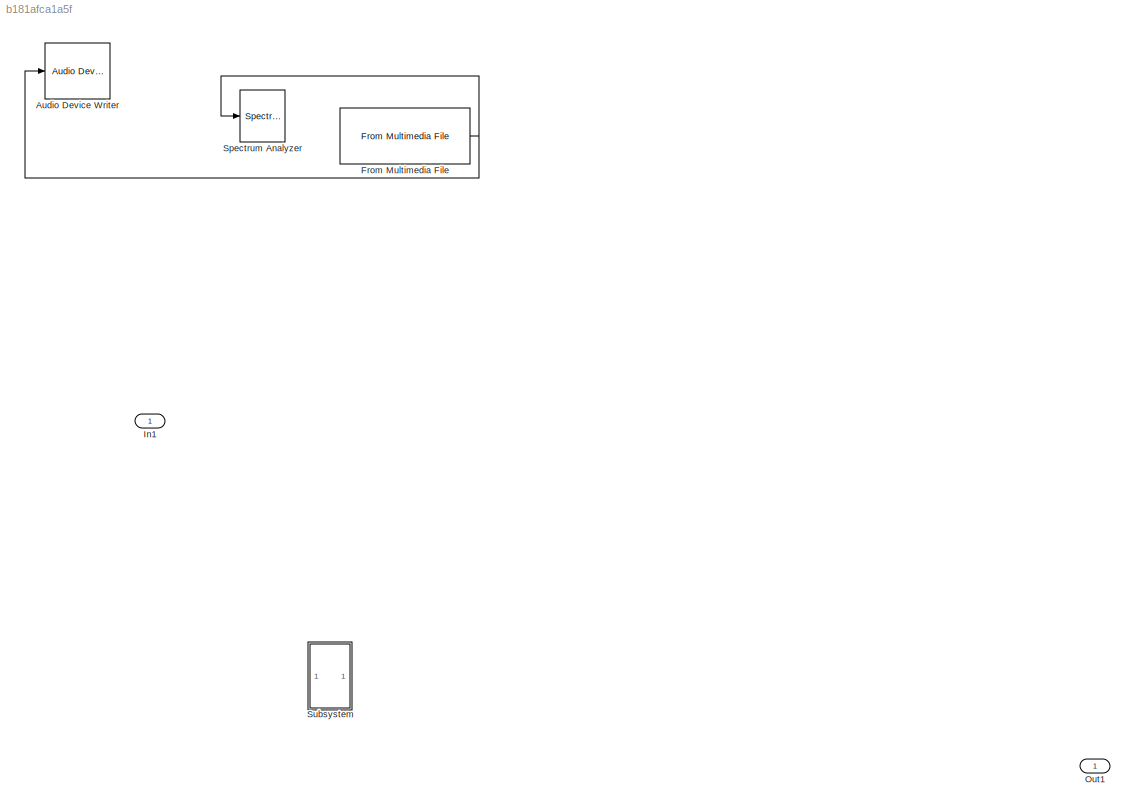
MODEL slx_b181afca1a5f
KIND model
CONFIG AbsTol = auto
CONFIG EnableMultiTasking = off
CONFIG FixedStep = auto
CONFIG MaxStep = auto
CONFIG MinStep = auto
CONFIG RelTol = 1e-3
CONFIG SampleTimeConstraint = Unconstrained
CONFIG Solver = VariableStepAuto
CONFIG SolverName = VariableStepAuto
CONFIG StartTime = 0.0
CONFIG StopTime = 10.0
BLOCK [Reference] Audio Device Writer  REF=dspsnks4/Audio Device
Writer
  Ports = [1]
  SourceBlock = dspsnks4/Audio Device\nWriter
  SourceProductBaseCode = DS
  SourceProductName = DSP System Toolbox
  SourceType = Audio Device Writer
BLOCK [Reference] From Multimedia File  REF=dspvision/From Multimedia File
  Ports = [0, 1]
  SourceBlock = dspvision/From Multimedia File
  SourceProductBaseCode = VP
  SourceProductName = Computer Vision System Toolbox
  SourceType = From Multimedia File
BLOCK [Inport] In1
  IconDisplay = Port number
BLOCK [Outport] Out1
  IconDisplay = Port number
BLOCK [SpectrumAnalyzer] Spectrum Analyzer
  Ports = [1]
  ScopeSpecificationString = spbscopes.SpectrumAnalyzerBlockCfg('CurrentConfiguration', extmgr.ConfigurationSet(extmgr.Configuration('Core','General UI',true),extmgr.Configuration('Core','Source UI',true),extmgr.Configuration('Sources','WiredSimulink',true),extmgr.Configuration('Visuals','Spectrum',true,'AxesProperties',struct('Color',{[0 0 0],[0 0 0]},'XColor',{[0.686274509803922 0.686274509803922 0.686274509803922],[0.68627...<+2133ch>
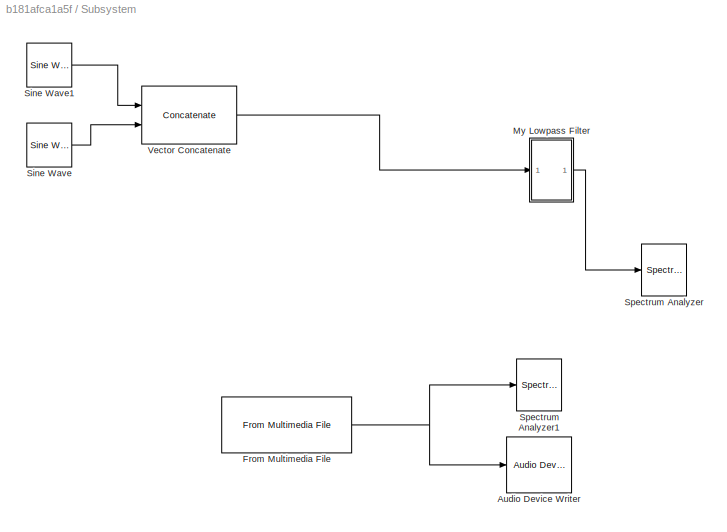
BLOCK [SubSystem] Subsystem
  Ports = []
  RequestExecContextInheritance = off
BLOCK [Reference] Subsystem/Audio Device Writer  REF=dspsnks4/Audio Device
Writer
  Commented = on
  Ports = [1]
  SourceBlock = dspsnks4/Audio Device\nWriter
  SourceProductBaseCode = DS
  SourceProductName = DSP System Toolbox
  SourceType = Audio Device Writer
BLOCK [Reference] Subsystem/From Multimedia File  REF=dspvision/From Multimedia File
  Ports = [0, 1]
  SourceBlock = dspvision/From Multimedia File
  SourceProductBaseCode = VP
  SourceProductName = Computer Vision System Toolbox
  SourceType = From Multimedia File
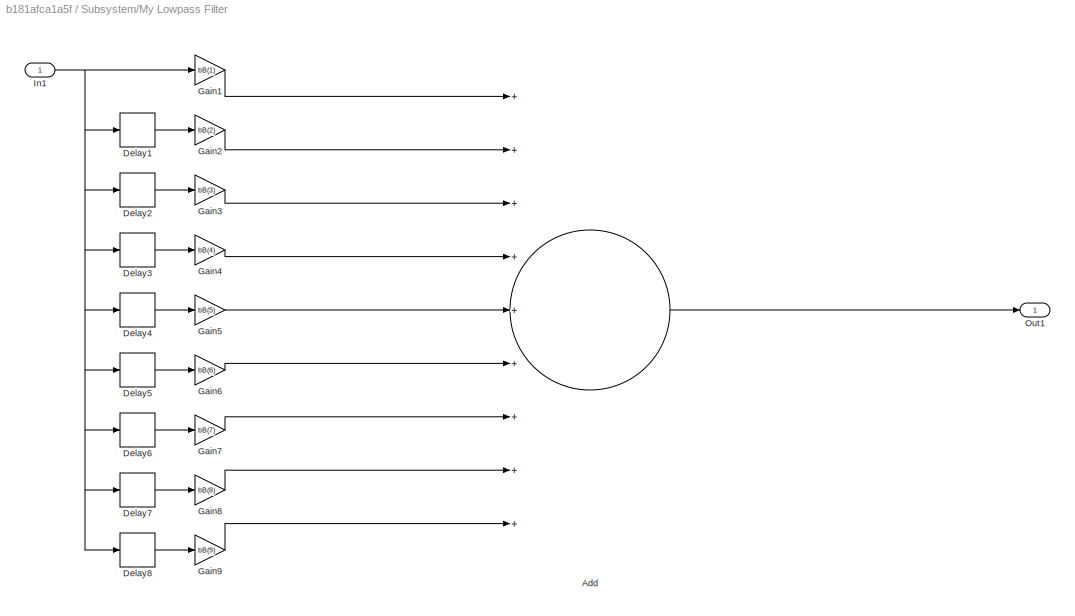
BLOCK [SubSystem] Subsystem/My Lowpass Filter
  Ports = [1, 1]
  RequestExecContextInheritance = off
BLOCK [Sum] Subsystem/My Lowpass Filter/Add
  InputSameDT = off
  Inputs = +++++++++
  OutDataTypeStr = Inherit: Inherit via internal rule
  Ports = [9, 1]
  SaturateOnIntegerOverflow = off
BLOCK [Delay] Subsystem/My Lowpass Filter/Delay1
  DelayLength = 1
  InitialCondition = 0
  InputPortMap = u0
  Ports = [1, 1]
BLOCK [Delay] Subsystem/My Lowpass Filter/Delay2
  DelayLength = 1
  InitialCondition = 0
  InputPortMap = u0
  Ports = [1, 1]
BLOCK [Delay] Subsystem/My Lowpass Filter/Delay3
  DelayLength = 1
  InitialCondition = 0
  InputPortMap = u0
  Ports = [1, 1]
BLOCK [Delay] Subsystem/My Lowpass Filter/Delay4
  DelayLength = 1
  InitialCondition = 0
  InputPortMap = u0
  Ports = [1, 1]
BLOCK [Delay] Subsystem/My Lowpass Filter/Delay5
  DelayLength = 1
  InitialCondition = 0
  InputPortMap = u0
  Ports = [1, 1]
BLOCK [Delay] Subsystem/My Lowpass Filter/Delay6
  DelayLength = 1
  InitialCondition = 0
  InputPortMap = u0
  Ports = [1, 1]
BLOCK [Delay] Subsystem/My Lowpass Filter/Delay7
  DelayLength = 1
  InitialCondition = 0
  InputPortMap = u0
  Ports = [1, 1]
BLOCK [Delay] Subsystem/My Lowpass Filter/Delay8
  DelayLength = 1
  InitialCondition = 0
  InputPortMap = u0
  Ports = [1, 1]
BLOCK [Gain] Subsystem/My Lowpass Filter/Gain1
  Gain = bB(1)
  OutDataTypeStr = Inherit: Inherit via internal rule
  ParamDataTypeStr = Inherit: Inherit via internal rule
  SaturateOnIntegerOverflow = off
BLOCK [Gain] Subsystem/My Lowpass Filter/Gain2
  Gain = bB(2)
  OutDataTypeStr = Inherit: Inherit via internal rule
  ParamDataTypeStr = Inherit: Inherit via internal rule
  SaturateOnIntegerOverflow = off
BLOCK [Gain] Subsystem/My Lowpass Filter/Gain3
  Gain = bB(3)
  OutDataTypeStr = Inherit: Inherit via internal rule
  ParamDataTypeStr = Inherit: Inherit via internal rule
  SaturateOnIntegerOverflow = off
BLOCK [Gain] Subsystem/My Lowpass Filter/Gain4
  Gain = bB(4)
  OutDataTypeStr = Inherit: Inherit via internal rule
  ParamDataTypeStr = Inherit: Inherit via internal rule
  SaturateOnIntegerOverflow = off
BLOCK [Gain] Subsystem/My Lowpass Filter/Gain5
  Gain = bB(5)
  OutDataTypeStr = Inherit: Inherit via internal rule
  ParamDataTypeStr = Inherit: Inherit via internal rule
  SaturateOnIntegerOverflow = off
BLOCK [Gain] Subsystem/My Lowpass Filter/Gain6
  Gain = bB(6)
  OutDataTypeStr = Inherit: Inherit via internal rule
  ParamDataTypeStr = Inherit: Inherit via internal rule
  SaturateOnIntegerOverflow = off
BLOCK [Gain] Subsystem/My Lowpass Filter/Gain7
  Gain = bB(7)
  OutDataTypeStr = Inherit: Inherit via internal rule
  ParamDataTypeStr = Inherit: Inherit via internal rule
  SaturateOnIntegerOverflow = off
BLOCK [Gain] Subsystem/My Lowpass Filter/Gain8
  Gain = bB(8)
  OutDataTypeStr = Inherit: Inherit via internal rule
  ParamDataTypeStr = Inherit: Inherit via internal rule
  SaturateOnIntegerOverflow = off
BLOCK [Gain] Subsystem/My Lowpass Filter/Gain9
  Gain = bB(9)
  OutDataTypeStr = Inherit: Inherit via internal rule
  ParamDataTypeStr = Inherit: Inherit via internal rule
  SaturateOnIntegerOverflow = off
BLOCK [Inport] Subsystem/My Lowpass Filter/In1
  IconDisplay = Port number
BLOCK [Outport] Subsystem/My Lowpass Filter/Out1
  IconDisplay = Port number
BLOCK [Reference] Subsystem/Sine Wave  REF=dspsrcs4/Sine Wave
  Ports = [0, 1]
  SourceBlock = dspsrcs4/Sine Wave
  SourceProductBaseCode = DS
  SourceProductName = DSP System Toolbox
  SourceType = Sine Wave
BLOCK [Reference] Subsystem/Sine Wave1  REF=dspsrcs4/Sine Wave
  Ports = [0, 1]
  SourceBlock = dspsrcs4/Sine Wave
  SourceProductBaseCode = DS
  SourceProductName = DSP System Toolbox
  SourceType = Sine Wave
BLOCK [SpectrumAnalyzer] Subsystem/Spectrum Analyzer
  Ports = [1]
  ScopeSpecificationString = spbscopes.SpectrumAnalyzerBlockCfg('CurrentConfiguration', extmgr.ConfigurationSet(extmgr.Configuration('Core','General UI',true),extmgr.Configuration('Core','Source UI',true),extmgr.Configuration('Sources','WiredSimulink',true),extmgr.Configuration('Visuals','Spectrum',true,'AxesProperties',struct('Color',{[0 0 0],[0 0 0]},'XColor',{[0.686274509803922 0.686274509803922 0.686274509803922],[0.68627...<+2137ch>
BLOCK [SpectrumAnalyzer] Subsystem/Spectrum Analyzer1
  Ports = [1]
  ScopeSpecificationString = spbscopes.SpectrumAnalyzerBlockCfg('CurrentConfiguration', extmgr.ConfigurationSet(extmgr.Configuration('Core','General UI',true),extmgr.Configuration('Core','Source UI',true),extmgr.Configuration('Sources','WiredSimulink',true),extmgr.Configuration('Visuals','Spectrum',true,'AxesProperties',struct('Color',{[0 0 0],[0 0 0]},'XColor',{[0.686274509803922 0.686274509803922 0.686274509803922],[0.68627...<+2163ch>
BLOCK [Concatenate] Subsystem/Vector Concatenate
  ConcatenateDimension = 2
  Mode = Multidimensional array
  Ports = [2, 1]
NET From Multimedia File:1 -> Audio Device Writer:1, Spectrum Analyzer:1
NET Subsystem/From Multimedia File:1 -> Subsystem/Audio Device Writer:1, Subsystem/Spectrum Analyzer1:1
LINE Subsystem/My Lowpass Filter/Add:1 -> Subsystem/My Lowpass Filter/Out1:1
LINE Subsystem/My Lowpass Filter/Delay1:1 -> Subsystem/My Lowpass Filter/Gain2:1
LINE Subsystem/My Lowpass Filter/Delay2:1 -> Subsystem/My Lowpass Filter/Gain3:1
LINE Subsystem/My Lowpass Filter/Delay3:1 -> Subsystem/My Lowpass Filter/Gain4:1
LINE Subsystem/My Lowpass Filter/Delay4:1 -> Subsystem/My Lowpass Filter/Gain5:1
LINE Subsystem/My Lowpass Filter/Delay5:1 -> Subsystem/My Lowpass Filter/Gain6:1
LINE Subsystem/My Lowpass Filter/Delay6:1 -> Subsystem/My Lowpass Filter/Gain7:1
LINE Subsystem/My Lowpass Filter/Delay7:1 -> Subsystem/My Lowpass Filter/Gain8:1
LINE Subsystem/My Lowpass Filter/Delay8:1 -> Subsystem/My Lowpass Filter/Gain9:1
LINE Subsystem/My Lowpass Filter/Gain1:1 -> Subsystem/My Lowpass Filter/Add:1
LINE Subsystem/My Lowpass Filter/Gain2:1 -> Subsystem/My Lowpass Filter/Add:2
LINE Subsystem/My Lowpass Filter/Gain3:1 -> Subsystem/My Lowpass Filter/Add:3
LINE Subsystem/My Lowpass Filter/Gain4:1 -> Subsystem/My Lowpass Filter/Add:4
LINE Subsystem/My Lowpass Filter/Gain5:1 -> Subsystem/My Lowpass Filter/Add:5
LINE Subsystem/My Lowpass Filter/Gain6:1 -> Subsystem/My Lowpass Filter/Add:6
LINE Subsystem/My Lowpass Filter/Gain7:1 -> Subsystem/My Lowpass Filter/Add:7
LINE Subsystem/My Lowpass Filter/Gain8:1 -> Subsystem/My Lowpass Filter/Add:8
LINE Subsystem/My Lowpass Filter/Gain9:1 -> Subsystem/My Lowpass Filter/Add:9
NET Subsystem/My Lowpass Filter/In1:1 -> Subsystem/My Lowpass Filter/Delay1:1, Subsystem/My Lowpass Filter/Delay2:1, Subsystem/My Lowpass Filter/Delay3:1, Subsystem/My Lowpass Filter/Delay4:1, Subsystem/My Lowpass Filter/Delay5:1, Subsystem/My Lowpass Filter/Delay6:1, Subsystem/My Lowpass Filter/Delay7:1, Subsystem/My Lowpass Filter/Delay8:1, Subsystem/My Lowpass Filter/Gain1:1
LINE Subsystem/My Lowpass Filter:1 -> Subsystem/Spectrum Analyzer:1
LINE Subsystem/Sine Wave1:1 -> Subsystem/Vector Concatenate:1
LINE Subsystem/Sine Wave:1 -> Subsystem/Vector Concatenate:2
LINE Subsystem/Vector Concatenate:1 -> Subsystem/My Lowpass Filter:1
note: NET lines group one-source signal fan-out (src -> all destinations, sorted); 1:1 wires keep LINE
